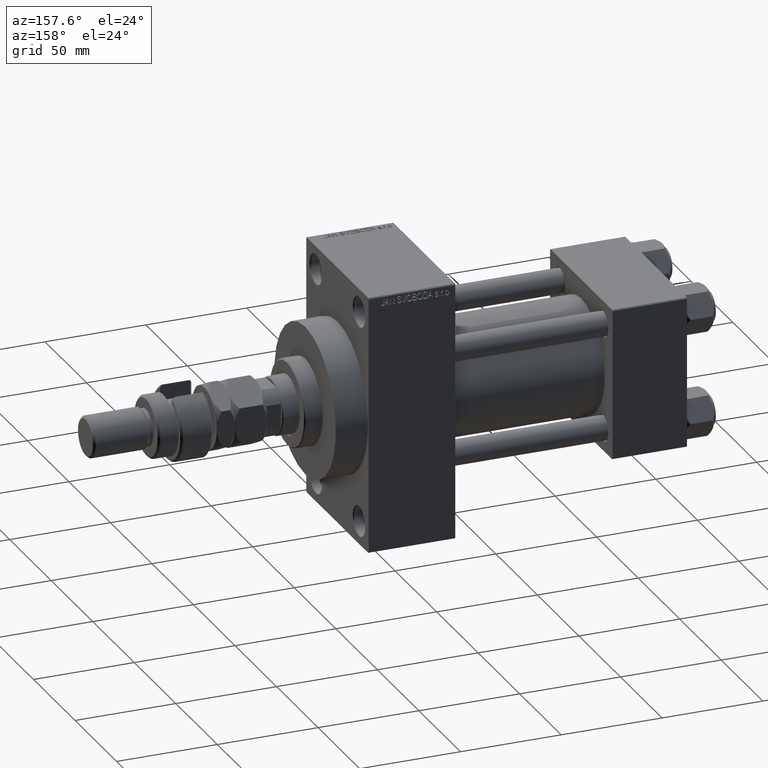
[diagram: clean part render]
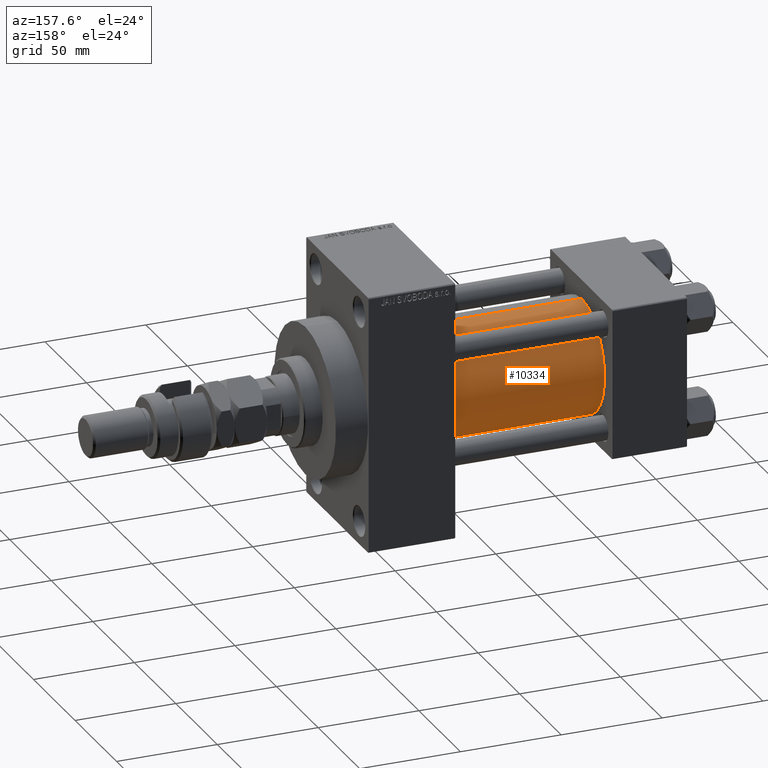
[diagram: same view with one face highlighted and labeled with its STEP entity id]
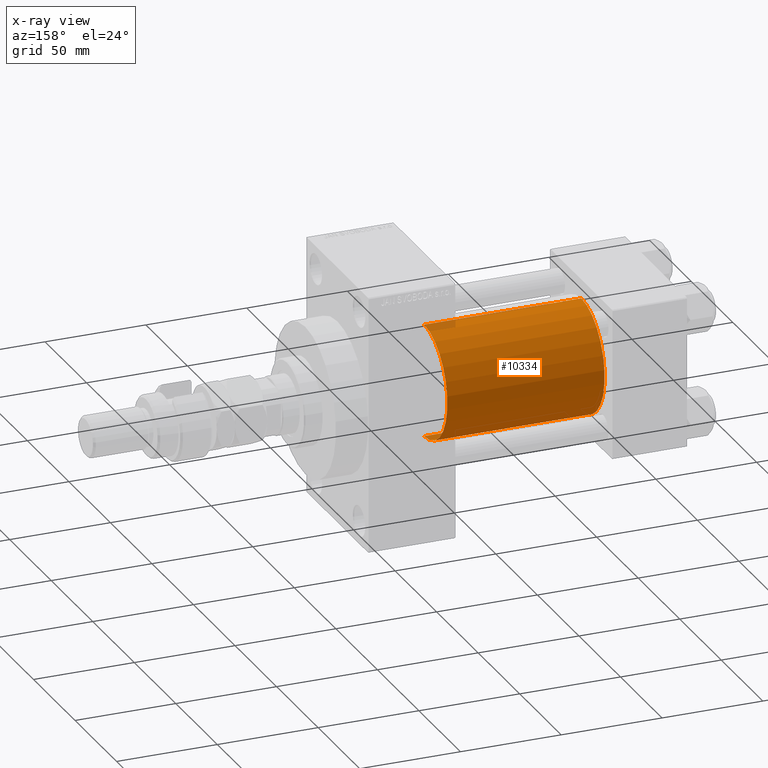
[diagram: x-ray of the same camera — body ghosted, the highlighted face saturated]
A machine part, auxiliary view. The second image highlights one B-rep face of the part: STEP entity #10334.
The next image is the same camera in x-ray: the body ghosted, the highlighted face saturated — about 2% of this face is hidden behind the body in this view.
In plain terms, the highlighted cylindrical surface (partial cylindrical patch) has radius 28 mm, axis along (-1, -0, -0).
Its self-contained STEP definition (entity closure, byte-faithful):
#78 = CYLINDRICAL_SURFACE ( 'NONE', #18760, 28.00000000000000000 ) ;
#1319 = EDGE_LOOP ( 'NONE', ( #45543, #17999, #34136, #47035 ) ) ;
#3275 = EDGE_CURVE ( 'NONE', #33616, #51455, #40107, .T. ) ;
#5822 = VERTEX_POINT ( 'NONE', #33606 ) ;
#6564 = CIRCLE ( 'NONE', #15848, 28.00000000000000000 ) ;
#9481 = DIRECTION ( 'NONE',  ( 0.000000000000000000, 0.000000000000000000, 1.000000000000000000 ) ) ;
#10334 = ADVANCED_FACE ( 'NONE', ( #13014 ), #78, .T. ) ;
#12921 = CARTESIAN_POINT ( 'NONE',  ( 114.9999999999999858, -2.602085213965210642E-15, 0.000000000000000000 ) ) ;
#12948 = CARTESIAN_POINT ( 'NONE',  ( 37.00000000000000711, 8.269258236473784371E-16, -28.00000000000000000 ) ) ;
#13014 = FACE_OUTER_BOUND ( 'NONE', #1319, .T. ) ;
#13665 = CARTESIAN_POINT ( 'NONE',  ( 37.00000000000000711, -2.602085213965210642E-15, 28.00000000000000000 ) ) ;
#13711 = DIRECTION ( 'NONE',  ( 1.000000000000000000, -0.000000000000000000, 0.000000000000000000 ) ) ;
#15848 = AXIS2_PLACEMENT_3D ( 'NONE', #12921, #42163, #49522 ) ;
#15957 = CARTESIAN_POINT ( 'NONE',  ( 114.9999999999999858, -2.602085213965210642E-15, 0.000000000000000000 ) ) ;
#17036 = EDGE_CURVE ( 'NONE', #51455, #44623, #50841, .T. ) ;
#17999 = ORIENTED_EDGE ( 'NONE', *, *, #3275, .T. ) ;
#18760 = AXIS2_PLACEMENT_3D ( 'NONE', #15957, #33031, #23860 ) ;
#23797 = DIRECTION ( 'NONE',  ( -1.000000000000000000, -0.000000000000000000, -0.000000000000000000 ) ) ;
#23860 = DIRECTION ( 'NONE',  ( 0.000000000000000000, 0.000000000000000000, 1.000000000000000000 ) ) ;
#25118 = EDGE_CURVE ( 'NONE', #33616, #5822, #6564, .T. ) ;
#29840 = AXIS2_PLACEMENT_3D ( 'NONE', #45551, #13711, #9481 ) ;
#33031 = DIRECTION ( 'NONE',  ( -1.000000000000000000, -0.000000000000000000, -0.000000000000000000 ) ) ;
#33606 = CARTESIAN_POINT ( 'NONE',  ( 114.9999999999999858, -2.602085213965210642E-15, 28.00000000000000000 ) ) ;
#33616 = VERTEX_POINT ( 'NONE', #35216 ) ;
#34136 = ORIENTED_EDGE ( 'NONE', *, *, #17036, .T. ) ;
#35216 = CARTESIAN_POINT ( 'NONE',  ( 114.9999999999999858, 8.269258236473784371E-16, -28.00000000000000000 ) ) ;
#35600 = LINE ( 'NONE', #47963, #43364 ) ;
#35895 = EDGE_CURVE ( 'NONE', #5822, #44623, #35600, .T. ) ;
#40107 = LINE ( 'NONE', #51959, #46219 ) ;
#42163 = DIRECTION ( 'NONE',  ( 1.000000000000000000, 0.000000000000000000, 0.000000000000000000 ) ) ;
#43364 = VECTOR ( 'NONE', #46930, 1000.000000000000000 ) ;
#44623 = VERTEX_POINT ( 'NONE', #13665 ) ;
#45543 = ORIENTED_EDGE ( 'NONE', *, *, #25118, .F. ) ;
#45551 = CARTESIAN_POINT ( 'NONE',  ( 37.00000000000000711, -2.602085213965210642E-15, 0.000000000000000000 ) ) ;
#46219 = VECTOR ( 'NONE', #23797, 1000.000000000000000 ) ;
#46930 = DIRECTION ( 'NONE',  ( -1.000000000000000000, -0.000000000000000000, -0.000000000000000000 ) ) ;
#47035 = ORIENTED_EDGE ( 'NONE', *, *, #35895, .F. ) ;
#47963 = CARTESIAN_POINT ( 'NONE',  ( 114.9999999999999858, -2.602085213965210642E-15, 28.00000000000000000 ) ) ;
#49522 = DIRECTION ( 'NONE',  ( 0.000000000000000000, 0.000000000000000000, -1.000000000000000000 ) ) ;
#50841 = CIRCLE ( 'NONE', #29840, 28.00000000000000000 ) ;
#51455 = VERTEX_POINT ( 'NONE', #12948 ) ;
#51959 = CARTESIAN_POINT ( 'NONE',  ( 114.9999999999999858, 8.269258236473784371E-16, -28.00000000000000000 ) ) ;